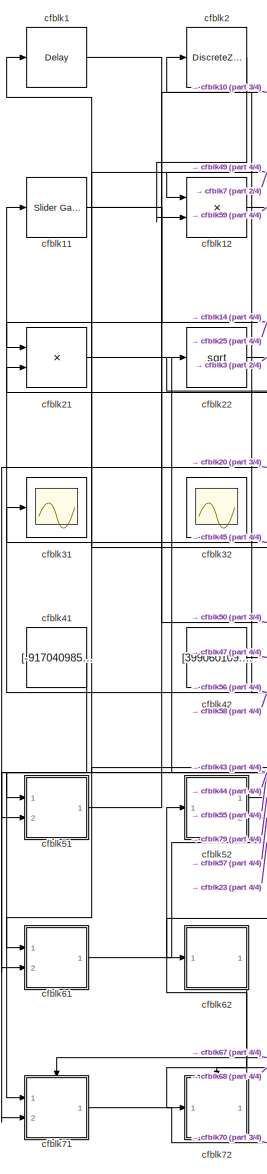
[diagram: root canvas - part 1/4, left side, full height]
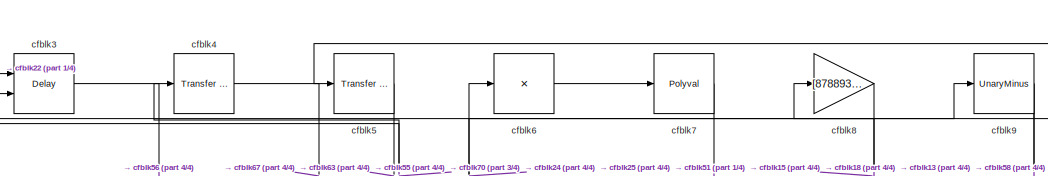
[diagram: root canvas - part 2/4, top center region]
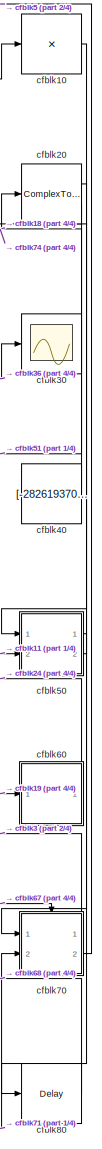
[diagram: root canvas - part 3/4, right side, full height]
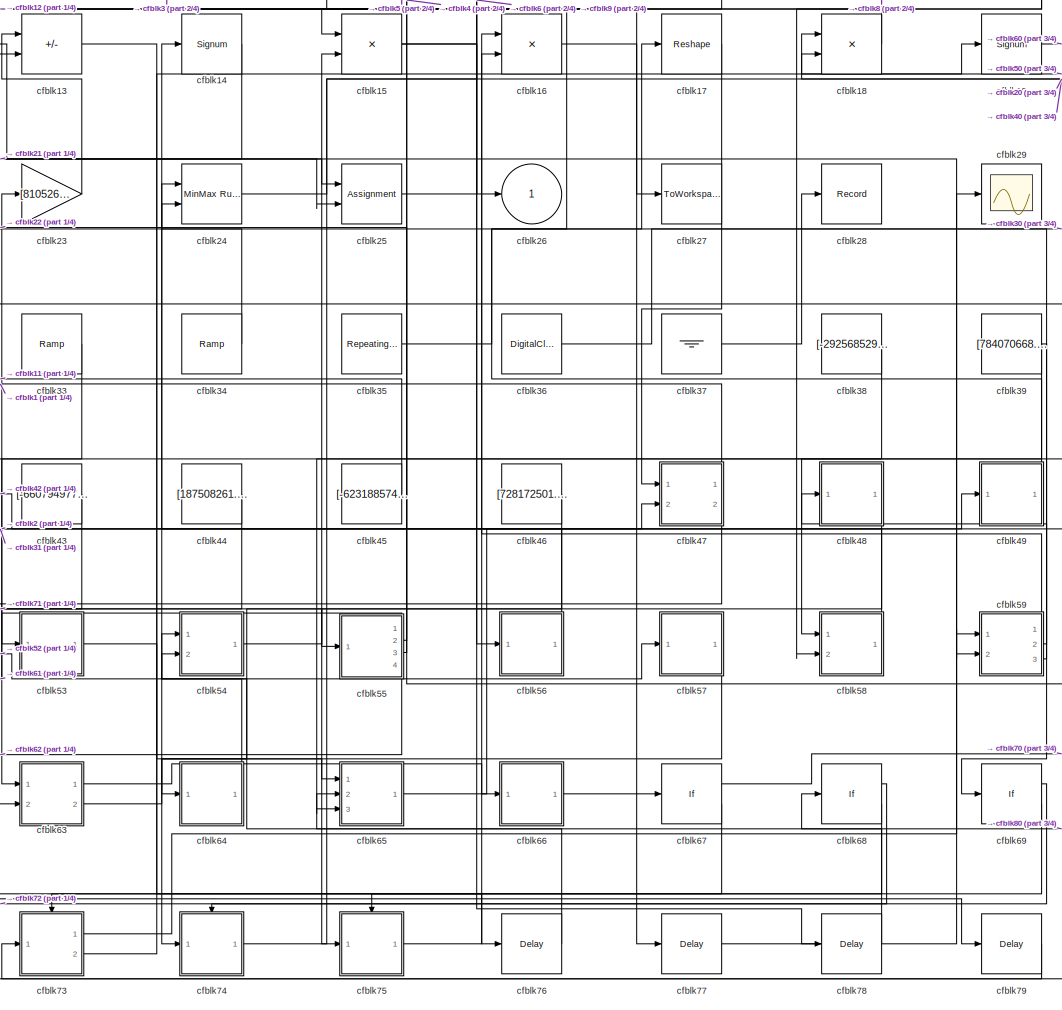
[diagram: root canvas - part 4/4, center side, full height]
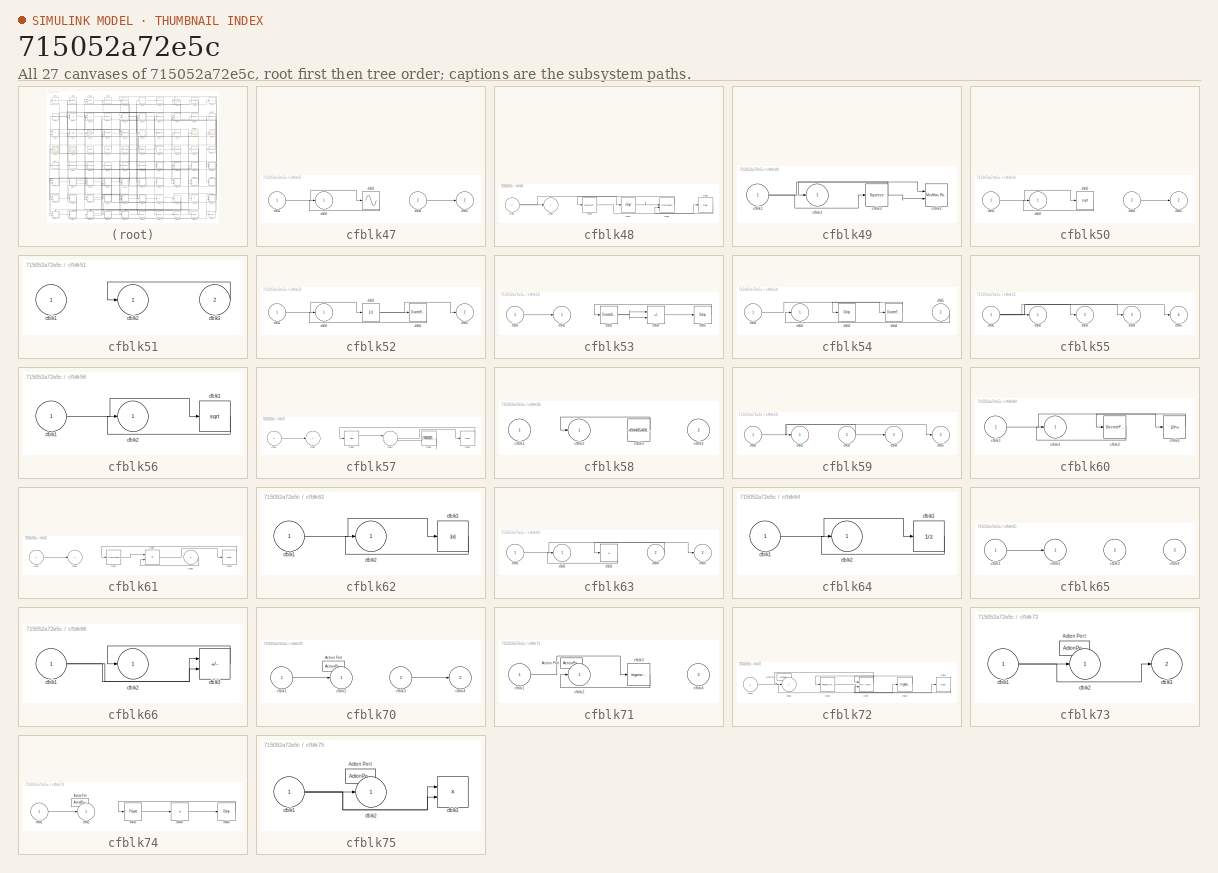
[diagram: thumbnail index - all 27 canvases of the model, root first then tree order]
MODEL slx_715052a72e5c
KIND model
CONFIG AbsTol = auto
CONFIG EnableMultiTasking = off
CONFIG FixedStep = auto
CONFIG MaxStep = auto
CONFIG MinStep = auto
CONFIG RelTol = 1e-3
CONFIG SampleTimeConstraint = Unconstrained
CONFIG SolverName = VariableStepAuto
CONFIG StartTime = 0.0
CONFIG StopTime = 10.0
BLOCK [Delay] cfblk1
  InputPortMap = u0
  Ports = [1, 1]
  SampleTime = 1
BLOCK [Product] cfblk10
  Inputs = *
  Ports = [1, 1]
BLOCK [Reference] cfblk11  REF=simulink/Math
Operations/Slider
Gain
  Ports = [1, 1]
  SourceBlock = simulink/Math\nOperations/Slider\nGain
  SourceProductBaseCode = SL
  SourceType = Slider Gain
BLOCK [Product] cfblk12
  Inputs = **
  Ports = [2, 1]
BLOCK [Sum] cfblk13
  IconShape = rectangular
  Inputs = +-
  Ports = [2, 1]
BLOCK [Signum] cfblk14
BLOCK [Product] cfblk15
  Ports = [2, 1]
BLOCK [Product] cfblk16
  Ports = [2, 1]
BLOCK [Reshape] cfblk17
  Ports = [1, 1]
BLOCK [Product] cfblk18
  Inputs = **
  Ports = [2, 1]
BLOCK [Signum] cfblk19
BLOCK [DiscreteZeroPole] cfblk2
  Gain = 1
  Poles = [0 0.5]
BLOCK [ComplexToRealImag] cfblk20
  Ports = [1, 2]
BLOCK [Product] cfblk21
  Ports = [2, 1]
BLOCK [Sqrt] cfblk22
BLOCK [Gain] cfblk23
  Gain = [810526746.295318]
BLOCK [Reference] cfblk24  REF=simulink/Math
Operations/MinMax
Running
Resettable
  Ports = [2, 1]
  SourceBlock = simulink/Math\nOperations/MinMax\nRunning\nResettable
  SourceProductBaseCode = SL
  SourceType = MinMax Running Resettable
BLOCK [Assignment] cfblk25
  DiagnosticForDimensions = Warning
  IndexOptions = Index vector (dialog)
  Indices = 1
  OutputSizes = 1
  Ports = [2, 1]
BLOCK [Outport] cfblk26
BLOCK [ToWorkspace] cfblk27
  FixptAsFi = on
  MaxDataPoints = inf
  Ports = [1]
  SampleTime = -1
  SaveFormat = Timeseries
  VariableName = hzaqpun
BLOCK [Record] cfblk28
  FileSettingsInternal = {"entries":[{"content":{"excelSettings":{"content":{},"type":"Streamout.ExcelSettings"}},"type":"Streamout.FileSettingStorage","uuid":"24ff093a-1f23-429e-a84e-9bae867bdd3c"}],"packageUris":["http://schema.mathworks.com/mf0/streamout_blocks/R2020a"],"version":"1.0"}
  Ports = [1]
  SignalsInternal = {"entries":[{"content":{"signals":[{"content":{"blockPath":["sampleModel217/cfblk28"],"channel":[],"dimensions":[1],"domain":"sampleModel217/cfblk28","lineColor":"#a2142f","plots":[1],"port":1,"sid":[""],"signalID":8365,"signalName":"cfblk37"},"type":"RecordBlkView.Signal","uuid":"3e2e97f5-1a37-4873-8e35-5f65989afa2d"}]},"type":"RecordBlkView.InputSignals","uuid":"f65d37d0-2da0-4d1a-9cf4-d7ef2a7cb...<+97ch>
  VisualizationBindings = {"sparklinesplugin":{"info":[{"bindingParametersList":[],"subplotID":1}]}}
BLOCK [Scope] cfblk29
  Floating = off
  NumInputPorts = 1
  Ports = [1]
BLOCK [Delay] cfblk3
  DelayLengthSource = Input port
  InputPortMap = u0,p1
  Ports = [2, 1]
  SampleTime = 1
BLOCK [Scope] cfblk30
  Floating = off
  NumInputPorts = 1
  Ports = [1]
BLOCK [Scope] cfblk31
  Floating = off
  NumInputPorts = 1
  Ports = [1]
BLOCK [Scope] cfblk32
  Floating = on
  NumInputPorts = 1
  Ports = []
BLOCK [Reference] cfblk33  REF=simulink/Sources/Ramp
  Ports = [0, 1]
  SourceBlock = simulink/Sources/Ramp
  SourceProductBaseCode = SL
  SourceType = Ramp
BLOCK [Reference] cfblk34  REF=simulink/Sources/Ramp
  Ports = [0, 1]
  SourceBlock = simulink/Sources/Ramp
  SourceProductBaseCode = SL
  SourceType = Ramp
BLOCK [Reference] cfblk35  REF=simulink/Sources/Repeating
Sequence
Interpolated
  Ports = [0, 1]
  SourceBlock = simulink/Sources/Repeating\nSequence\nInterpolated
  SourceProductBaseCode = SL
  SourceType = Repeating Sequence Interpolated
BLOCK [DigitalClock] cfblk36
BLOCK [Ground] cfblk37
BLOCK [Constant] cfblk38
  SampleTime = 1
  Value = [-292568529.496527]
BLOCK [Constant] cfblk39
  SampleTime = 1
  Value = [784070668.278988]
BLOCK [Reference] cfblk4  REF=simulink/Discrete/Transfer Fcn
Real Zero
  Ports = [1, 1]
  SourceBlock = simulink/Discrete/Transfer Fcn\nReal Zero
  SourceProductBaseCode = SL
  SourceType = Transfer Fcn Real Zero
BLOCK [Constant] cfblk40
  SampleTime = 1
  Value = [-282619370.169214]
BLOCK [Constant] cfblk41
  SampleTime = 1
  Value = [-917040985.190765]
BLOCK [Constant] cfblk42
  SampleTime = 1
  Value = [399060109.205925]
BLOCK [Constant] cfblk43
  SampleTime = 1
  Value = [-660794977.327763]
BLOCK [Constant] cfblk44
  SampleTime = 1
  Value = [187508261.668661]
BLOCK [Constant] cfblk45
  SampleTime = 1
  Value = [-623188574.583707]
BLOCK [Constant] cfblk46
  SampleTime = 1
  Value = [728172501.343453]
BLOCK [SubSystem] cfblk47
  Ports = [2, 2]
  RequestExecContextInheritance = off
BLOCK [Inport] cfblk47/cfblk1
BLOCK [Outport] cfblk47/cfblk2
BLOCK [Sin] cfblk47/cfblk3
  Ports = [1, 1]
  SampleTime = 0
  TimeSource = Use external signal
BLOCK [Inport] cfblk47/cfblk4
  Port = 2
BLOCK [Outport] cfblk47/cfblk5
  Port = 2
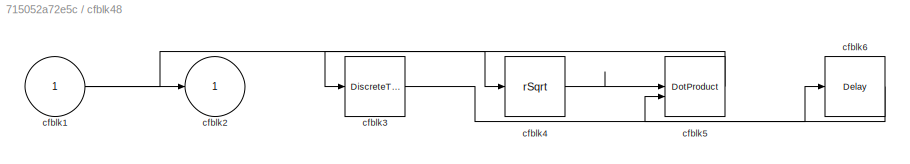
BLOCK [SubSystem] cfblk48
  Ports = [1, 1]
  RequestExecContextInheritance = off
BLOCK [Inport] cfblk48/cfblk1
BLOCK [Outport] cfblk48/cfblk2
BLOCK [DiscreteTransferFcn] cfblk48/cfblk3
  InputPortMap = u0
  Ports = [1, 1]
  SampleTime = 1
BLOCK [Sqrt] cfblk48/cfblk4
  AlgorithmType = Newton-Raphson
  Operator = rSqrt
BLOCK [DotProduct] cfblk48/cfblk5
  OutDataTypeStr = Inherit: Inherit via internal rule
BLOCK [Delay] cfblk48/cfblk6
  InputPortMap = u0
  Ports = [1, 1]
  SampleTime = 1
BLOCK [SubSystem] cfblk49
  Ports = [1, 1]
  RequestExecContextInheritance = off
BLOCK [Inport] cfblk49/cfblk1
BLOCK [Outport] cfblk49/cfblk2
BLOCK [Squeeze] cfblk49/cfblk3
BLOCK [Reference] cfblk49/cfblk4  REF=simulink/Math
Operations/MinMax
Running
Resettable
  Ports = [2, 1]
  SourceBlock = simulink/Math\nOperations/MinMax\nRunning\nResettable
  SourceProductBaseCode = SL
  SourceType = MinMax Running Resettable
BLOCK [Reference] cfblk5  REF=simulink/Discrete/Transfer Fcn
Real Zero
  Ports = [1, 1]
  SourceBlock = simulink/Discrete/Transfer Fcn\nReal Zero
  SourceProductBaseCode = SL
  SourceType = Transfer Fcn Real Zero
BLOCK [SubSystem] cfblk50
  Ports = [2, 2]
  RequestExecContextInheritance = off
BLOCK [Inport] cfblk50/cfblk1
BLOCK [Outport] cfblk50/cfblk2
BLOCK [Sqrt] cfblk50/cfblk3
BLOCK [Inport] cfblk50/cfblk4
  Port = 2
BLOCK [Outport] cfblk50/cfblk5
  Port = 2
BLOCK [SubSystem] cfblk51
  Ports = [2, 1]
  RequestExecContextInheritance = off
BLOCK [Inport] cfblk51/cfblk1
BLOCK [Outport] cfblk51/cfblk2
BLOCK [Inport] cfblk51/cfblk3
  Port = 2
BLOCK [SubSystem] cfblk52
  Ports = [1, 2]
  RequestExecContextInheritance = off
BLOCK [Inport] cfblk52/cfblk1
BLOCK [Outport] cfblk52/cfblk2
BLOCK [UnitDelay] cfblk52/cfblk3
  HasFrameUpgradeWarning = on
BLOCK [DiscreteStateSpace] cfblk52/cfblk4
BLOCK [Outport] cfblk52/cfblk5
  Port = 2
BLOCK [SubSystem] cfblk53
  Ports = [1, 1]
  RequestExecContextInheritance = off
BLOCK [Inport] cfblk53/cfblk1
BLOCK [Outport] cfblk53/cfblk2
BLOCK [DiscreteStateSpace] cfblk53/cfblk3
BLOCK [Sum] cfblk53/cfblk4
  IconShape = rectangular
  Inputs = +-
  Ports = [2, 1]
BLOCK [Delay] cfblk53/cfblk5
  InputPortMap = u0
  Ports = [1, 1]
  SampleTime = 1
BLOCK [SubSystem] cfblk54
  Ports = [2, 1]
  RequestExecContextInheritance = off
BLOCK [Inport] cfblk54/cfblk1
BLOCK [Outport] cfblk54/cfblk2
BLOCK [Delay] cfblk54/cfblk3
  InputPortMap = u0
  Ports = [1, 1]
  SampleTime = 1
BLOCK [DiscreteTransferFcn] cfblk54/cfblk4
  InputPortMap = u0
  Ports = [1, 1]
  SampleTime = 1
BLOCK [Inport] cfblk54/cfblk5
  Port = 2
BLOCK [SubSystem] cfblk55
  Ports = [1, 4]
  RequestExecContextInheritance = off
BLOCK [Inport] cfblk55/cfblk1
BLOCK [Outport] cfblk55/cfblk2
BLOCK [Outport] cfblk55/cfblk3
  Port = 2
BLOCK [Outport] cfblk55/cfblk4
  Port = 3
BLOCK [Outport] cfblk55/cfblk5
  Port = 4
BLOCK [SubSystem] cfblk56
  Ports = [1, 1]
  RequestExecContextInheritance = off
BLOCK [Inport] cfblk56/cfblk1
BLOCK [Outport] cfblk56/cfblk2
BLOCK [Sqrt] cfblk56/cfblk3
BLOCK [SubSystem] cfblk57
  Ports = [1, 1]
  RequestExecContextInheritance = off
BLOCK [Inport] cfblk57/cfblk1
BLOCK [Outport] cfblk57/cfblk2
BLOCK [Bias] cfblk57/cfblk3
  Bias = [-334974696.269725]
  SaturateOnIntegerOverflow = off
BLOCK [Sum] cfblk57/cfblk4
  Inputs = |++
  Ports = [2, 1]
BLOCK [Constant] cfblk57/cfblk5
  SampleTime = 1
  Value = [768603925.087542]
BLOCK [Delay] cfblk57/cfblk6
  InputPortMap = u0
  Ports = [1, 1]
  SampleTime = 1
BLOCK [SubSystem] cfblk58
  Ports = [2, 1]
  RequestExecContextInheritance = off
BLOCK [Inport] cfblk58/cfblk1
BLOCK [Outport] cfblk58/cfblk2
BLOCK [Constant] cfblk58/cfblk3
  SampleTime = 1
  Value = [-494485408.007506]
BLOCK [Inport] cfblk58/cfblk4
  Port = 2
BLOCK [SubSystem] cfblk59
  Ports = [2, 3]
  RequestExecContextInheritance = off
BLOCK [Inport] cfblk59/cfblk1
BLOCK [Outport] cfblk59/cfblk2
BLOCK [Inport] cfblk59/cfblk3
  Port = 2
BLOCK [Outport] cfblk59/cfblk4
  Port = 2
BLOCK [Outport] cfblk59/cfblk5
  Port = 3
BLOCK [Product] cfblk6
  Inputs = *
  Ports = [1, 1]
BLOCK [SubSystem] cfblk60
  Ports = [1, 1]
  RequestExecContextInheritance = off
BLOCK [Inport] cfblk60/cfblk1
BLOCK [Outport] cfblk60/cfblk2
BLOCK [DiscreteFilter] cfblk60/cfblk3
  InputPortMap = u0
  Ports = [1, 1]
  SampleTime = 1
BLOCK [Math] cfblk60/cfblk4
  Operator = 10^u
  Ports = [1, 1]
BLOCK [SubSystem] cfblk61
  Ports = [2, 1]
  RequestExecContextInheritance = off
BLOCK [Inport] cfblk61/cfblk1
BLOCK [Outport] cfblk61/cfblk2
BLOCK [UnaryMinus] cfblk61/cfblk3
BLOCK [Product] cfblk61/cfblk4
  Inputs = **
  Ports = [2, 1]
BLOCK [Inport] cfblk61/cfblk5
  Port = 2
BLOCK [Delay] cfblk61/cfblk6
  InputPortMap = u0
  Ports = [1, 1]
  SampleTime = 1
BLOCK [SubSystem] cfblk62
  Ports = [1, 1]
  RequestExecContextInheritance = off
BLOCK [Inport] cfblk62/cfblk1
BLOCK [Outport] cfblk62/cfblk2
BLOCK [Abs] cfblk62/cfblk3
  SaturateOnIntegerOverflow = off
BLOCK [SubSystem] cfblk63
  Ports = [2, 2]
  RequestExecContextInheritance = off
BLOCK [Inport] cfblk63/cfblk1
BLOCK [Outport] cfblk63/cfblk2
BLOCK [Sum] cfblk63/cfblk3
  IconShape = rectangular
  Inputs = +
  Ports = [1, 1]
BLOCK [Inport] cfblk63/cfblk4
  Port = 2
BLOCK [Outport] cfblk63/cfblk5
  Port = 2
BLOCK [SubSystem] cfblk64
  Ports = [1, 1]
  RequestExecContextInheritance = off
BLOCK [Inport] cfblk64/cfblk1
BLOCK [Outport] cfblk64/cfblk2
BLOCK [UnitDelay] cfblk64/cfblk3
  HasFrameUpgradeWarning = on
BLOCK [SubSystem] cfblk65
  Ports = [3, 1]
  RequestExecContextInheritance = off
BLOCK [Inport] cfblk65/cfblk1
BLOCK [Outport] cfblk65/cfblk2
BLOCK [Inport] cfblk65/cfblk3
  Port = 2
BLOCK [Inport] cfblk65/cfblk4
  Port = 3
BLOCK [SubSystem] cfblk66
  Ports = [1, 1]
  RequestExecContextInheritance = off
BLOCK [Inport] cfblk66/cfblk1
BLOCK [Outport] cfblk66/cfblk2
BLOCK [Sum] cfblk66/cfblk3
  IconShape = rectangular
  Inputs = +-
  Ports = [2, 1]
BLOCK [If] cfblk67
  IfExpression = u1 >= 0
  Ports = [1, 2]
  SampleTime = 1
BLOCK [If] cfblk68
  IfExpression = u1 >= 0
  Ports = [1, 2]
  SampleTime = 1
BLOCK [If] cfblk69
  IfExpression = u1 >= 0
  Ports = [1, 2]
  SampleTime = 1
BLOCK [Polyval] cfblk7
  Coefs = [ +2.081618890e-019, -1.441693666e-014, +4.719686976e-010, -8.536869453e-006, +1.621573104e-001, -8.087801117e+001 ]
BLOCK [SubSystem] cfblk70
  Ports = [2, 2, 0, 0, 0, 0, 0, 1]
  RequestExecContextInheritance = off
  TreatAsAtomicUnit = on
BLOCK [ActionPort] cfblk70/Action Port
  ActionPortLabel = if(u1 >= 0)
BLOCK [Inport] cfblk70/cfblk1
BLOCK [Outport] cfblk70/cfblk2
BLOCK [Inport] cfblk70/cfblk3
  Port = 2
BLOCK [Outport] cfblk70/cfblk4
  Port = 2
BLOCK [SubSystem] cfblk71
  Ports = [2, 1, 0, 0, 0, 0, 0, 1]
  RequestExecContextInheritance = off
  TreatAsAtomicUnit = on
BLOCK [ActionPort] cfblk71/Action Port
  ActionPortLabel = else
BLOCK [Inport] cfblk71/cfblk1
BLOCK [Outport] cfblk71/cfblk2
BLOCK [Trigonometry] cfblk71/cfblk3
  Ports = [1, 1]
BLOCK [Inport] cfblk71/cfblk4
  Port = 2
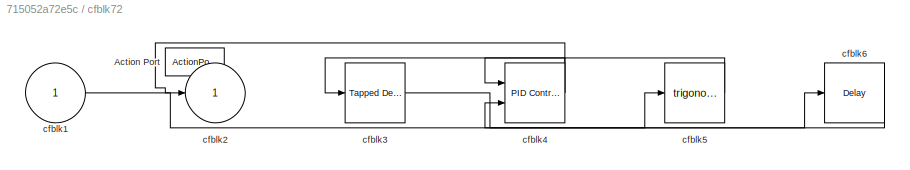
BLOCK [SubSystem] cfblk72
  Ports = [1, 1, 0, 0, 0, 0, 0, 1]
  RequestExecContextInheritance = off
  TreatAsAtomicUnit = on
BLOCK [ActionPort] cfblk72/Action Port
  ActionPortLabel = if(u1 >= 0)
BLOCK [Inport] cfblk72/cfblk1
BLOCK [Outport] cfblk72/cfblk2
BLOCK [Reference] cfblk72/cfblk3  REF=simulink/Discrete/Tapped Delay
  Ports = [1, 1]
  SourceBlock = simulink/Discrete/Tapped Delay
  SourceProductBaseCode = SL
  SourceType = Tapped Delay Line
BLOCK [Reference] cfblk72/cfblk4  REF=slpidlib/PID Controller (2DOF)
  Ports = [2, 1]
  SourceBlock = slpidlib/PID Controller (2DOF)
  SourceProductBaseCode = SL
  SourceType = PID 2dof
BLOCK [Trigonometry] cfblk72/cfblk5
  Ports = [1, 1]
BLOCK [Delay] cfblk72/cfblk6
  InputPortMap = u0
  Ports = [1, 1]
BLOCK [SubSystem] cfblk73
  Ports = [1, 2, 0, 0, 0, 0, 0, 1]
  RequestExecContextInheritance = off
  TreatAsAtomicUnit = on
BLOCK [ActionPort] cfblk73/Action Port
  ActionPortLabel = else
BLOCK [Inport] cfblk73/cfblk1
BLOCK [Outport] cfblk73/cfblk2
BLOCK [Outport] cfblk73/cfblk3
  Port = 2
BLOCK [SubSystem] cfblk74
  Ports = [1, 1, 0, 0, 0, 0, 0, 1]
  RequestExecContextInheritance = off
  TreatAsAtomicUnit = on
BLOCK [ActionPort] cfblk74/Action Port
  ActionPortLabel = if(u1 >= 0)
BLOCK [Inport] cfblk74/cfblk1
BLOCK [Outport] cfblk74/cfblk2
BLOCK [Polyval] cfblk74/cfblk3
  Coefs = [ +2.081618890e-019, -1.441693666e-014, +4.719686976e-010, -8.536869453e-006, +1.621573104e-001, -8.087801117e+001 ]
BLOCK [Product] cfblk74/cfblk4
  Inputs = *
  Ports = [1, 1]
BLOCK [Delay] cfblk74/cfblk5
  InputPortMap = u0
  Ports = [1, 1]
BLOCK [SubSystem] cfblk75
  Ports = [1, 1, 0, 0, 0, 0, 0, 1]
  RequestExecContextInheritance = off
  TreatAsAtomicUnit = on
BLOCK [ActionPort] cfblk75/Action Port
  ActionPortLabel = else
BLOCK [Inport] cfblk75/cfblk1
BLOCK [Outport] cfblk75/cfblk2
BLOCK [Product] cfblk75/cfblk3
  Ports = [2, 1]
BLOCK [Delay] cfblk76
  InputPortMap = u0
  Ports = [1, 1]
  SampleTime = 1
BLOCK [Delay] cfblk77
  InputPortMap = u0
  Ports = [1, 1]
  SampleTime = 1
BLOCK [Delay] cfblk78
  InputPortMap = u0
  Ports = [1, 1]
  SampleTime = 1
BLOCK [Delay] cfblk79
  InputPortMap = u0
  Ports = [1, 1]
  SampleTime = 1
BLOCK [Gain] cfblk8
  Gain = [878893990.907284]
BLOCK [Delay] cfblk80
  InputPortMap = u0
  Ports = [1, 1]
  SampleTime = 1
BLOCK [UnaryMinus] cfblk9
LINE cfblk10:1 -> cfblk50:1
NET cfblk11:1 -> cfblk25:2, cfblk50:2
LINE cfblk12:1 -> cfblk59:2
LINE cfblk13:1 -> cfblk65:1
LINE cfblk14:1 -> cfblk21:1
NET cfblk15:1 -> cfblk26:1, cfblk78:1
LINE cfblk16:1 -> cfblk27:1
LINE cfblk17:1 -> cfblk47:1
LINE cfblk18:1 -> cfblk8:1
LINE cfblk19:1 -> cfblk60:1
LINE cfblk1:1 -> cfblk25:1
LINE cfblk20:1 -> cfblk80:1
LINE cfblk20:2 -> cfblk51:2
LINE cfblk21:1 -> cfblk55:1
LINE cfblk22:1 -> cfblk3:1
LINE cfblk23:1 -> cfblk13:1
LINE cfblk24:1 -> cfblk6:1
LINE cfblk25:1 -> cfblk9:1
LINE cfblk2:1 -> cfblk12:2
LINE cfblk33:1 -> cfblk63:1
LINE cfblk34:1 -> cfblk14:1
LINE cfblk35:1 -> cfblk17:1
LINE cfblk36:1 -> cfblk30:1
LINE cfblk37:1 -> cfblk28:1
LINE cfblk38:1 -> cfblk58:1
NET cfblk39:1 -> cfblk65:3, cfblk69:1
LINE cfblk3:1 -> cfblk56:1
LINE cfblk40:1 -> cfblk18:1
LINE cfblk41:1 -> cfblk71:2
LINE cfblk42:1 -> cfblk47:2
LINE cfblk43:1 -> cfblk71:1
LINE cfblk44:1 -> cfblk61:2
LINE cfblk45:1 -> cfblk11:1
LINE cfblk46:1 -> cfblk75:1
LINE cfblk47/cfblk1:1 -> cfblk47/cfblk3:1
LINE cfblk47/cfblk3:1 -> cfblk47/cfblk2:1
LINE cfblk47/cfblk4:1 -> cfblk47/cfblk5:1
LINE cfblk47:1 -> cfblk1:1
LINE cfblk47:2 -> cfblk61:1
NET cfblk48/cfblk1:1 -> cfblk48/cfblk2:1, cfblk48/cfblk4:1
LINE cfblk48/cfblk3:1 -> cfblk48/cfblk6:1
LINE cfblk48/cfblk4:1 -> cfblk48/cfblk5:1
LINE cfblk48/cfblk5:1 -> cfblk48/cfblk3:1
LINE cfblk48/cfblk6:1 -> cfblk48/cfblk5:2
LINE cfblk48:1 -> cfblk64:1
NET cfblk49/cfblk1:1 -> cfblk49/cfblk3:1, cfblk49/cfblk4:1
NET cfblk49/cfblk3:1 -> cfblk49/cfblk2:1, cfblk49/cfblk4:2
LINE cfblk49:1 -> cfblk12:1
LINE cfblk4:1 -> cfblk67:1
LINE cfblk50/cfblk1:1 -> cfblk50/cfblk3:1
LINE cfblk50/cfblk3:1 -> cfblk50/cfblk2:1
LINE cfblk50/cfblk4:1 -> cfblk50/cfblk5:1
LINE cfblk50:1 -> cfblk70:1
LINE cfblk50:2 -> cfblk18:2
LINE cfblk51/cfblk3:1 -> cfblk51/cfblk2:1
LINE cfblk51:1 -> cfblk10:1
LINE cfblk52/cfblk1:1 -> cfblk52/cfblk3:1
NET cfblk52/cfblk3:1 -> cfblk52/cfblk4:1, cfblk52/cfblk5:1
LINE cfblk52/cfblk4:1 -> cfblk52/cfblk2:1
LINE cfblk52:1 -> cfblk79:1
LINE cfblk52:2 -> cfblk57:1
LINE cfblk53/cfblk1:1 -> cfblk53/cfblk2:1
NET cfblk53/cfblk3:1 -> cfblk53/cfblk4:1, cfblk53/cfblk4:2
LINE cfblk53/cfblk4:1 -> cfblk53/cfblk5:1
LINE cfblk53/cfblk5:1 -> cfblk53/cfblk3:1
LINE cfblk53:1 -> cfblk76:1
LINE cfblk54/cfblk1:1 -> cfblk54/cfblk4:1
LINE cfblk54/cfblk4:1 -> cfblk54/cfblk3:1
LINE cfblk54/cfblk5:1 -> cfblk54/cfblk2:1
LINE cfblk54:1 -> cfblk15:2
NET cfblk55/cfblk1:1 -> cfblk55/cfblk2:1, cfblk55/cfblk3:1, cfblk55/cfblk4:1, cfblk55/cfblk5:1
LINE cfblk55:1 -> cfblk53:1
LINE cfblk55:2 -> cfblk4:1
LINE cfblk55:3 -> cfblk22:1
LINE cfblk55:4 -> cfblk62:1
LINE cfblk56/cfblk1:1 -> cfblk56/cfblk3:1
LINE cfblk56/cfblk3:1 -> cfblk56/cfblk2:1
LINE cfblk56:1 -> cfblk31:1
LINE cfblk57/cfblk1:1 -> cfblk57/cfblk2:1
LINE cfblk57/cfblk3:1 -> cfblk57/cfblk4:1
LINE cfblk57/cfblk4:1 -> cfblk57/cfblk6:1
LINE cfblk57/cfblk5:1 -> cfblk57/cfblk4:2
LINE cfblk57/cfblk6:1 -> cfblk57/cfblk3:1
LINE cfblk57:1 -> cfblk74:1
LINE cfblk58/cfblk3:1 -> cfblk58/cfblk2:1
LINE cfblk58:1 -> cfblk2:1
LINE cfblk59/cfblk1:1 -> cfblk59/cfblk5:1
NET cfblk59/cfblk3:1 -> cfblk59/cfblk2:1, cfblk59/cfblk4:1
LINE cfblk59:1 -> cfblk16:1
LINE cfblk59:2 -> cfblk21:2
LINE cfblk59:3 -> cfblk48:1
LINE cfblk5:1 -> cfblk63:2
LINE cfblk60/cfblk1:1 -> cfblk60/cfblk4:1
LINE cfblk60/cfblk3:1 -> cfblk60/cfblk2:1
LINE cfblk60/cfblk4:1 -> cfblk60/cfblk3:1
LINE cfblk60:1 -> cfblk24:2
LINE cfblk61/cfblk1:1 -> cfblk61/cfblk2:1
LINE cfblk61/cfblk3:1 -> cfblk61/cfblk4:1
LINE cfblk61/cfblk4:1 -> cfblk61/cfblk6:1
LINE cfblk61/cfblk5:1 -> cfblk61/cfblk4:2
LINE cfblk61/cfblk6:1 -> cfblk61/cfblk3:1
LINE cfblk61:1 -> cfblk23:1
LINE cfblk62/cfblk1:1 -> cfblk62/cfblk3:1
LINE cfblk62/cfblk3:1 -> cfblk62/cfblk2:1
LINE cfblk62:1 -> cfblk72:1
LINE cfblk63/cfblk1:1 -> cfblk63/cfblk5:1
LINE cfblk63/cfblk3:1 -> cfblk63/cfblk2:1
LINE cfblk63/cfblk4:1 -> cfblk63/cfblk3:1
LINE cfblk63:1 -> cfblk66:1
LINE cfblk63:2 -> cfblk54:1
LINE cfblk64/cfblk1:1 -> cfblk64/cfblk3:1
LINE cfblk64/cfblk3:1 -> cfblk64/cfblk2:1
LINE cfblk64:1 -> cfblk24:1
LINE cfblk65/cfblk1:1 -> cfblk65/cfblk2:1
LINE cfblk65:1 -> cfblk49:1
NET cfblk66/cfblk1:1 -> cfblk66/cfblk3:1, cfblk66/cfblk3:2
LINE cfblk66/cfblk3:1 -> cfblk66/cfblk2:1
LINE cfblk66:1 -> cfblk77:1
LINE cfblk67:1 -> cfblk70:ifaction
LINE cfblk67:2 -> cfblk71:ifaction
LINE cfblk68:1 -> cfblk72:ifaction
LINE cfblk68:2 -> cfblk73:ifaction
LINE cfblk69:1 -> cfblk74:ifaction
LINE cfblk69:2 -> cfblk75:ifaction
LINE cfblk6:1 -> cfblk7:1
LINE cfblk70/cfblk1:1 -> cfblk70/cfblk2:1
LINE cfblk70/cfblk3:1 -> cfblk70/cfblk4:1
LINE cfblk70:1 -> cfblk3:2
LINE cfblk70:2 -> cfblk5:1
LINE cfblk71/cfblk1:1 -> cfblk71/cfblk3:1
LINE cfblk71/cfblk3:1 -> cfblk71/cfblk2:1
LINE cfblk71:1 -> cfblk70:2
LINE cfblk72/cfblk1:1 -> cfblk72/cfblk5:1
LINE cfblk72/cfblk3:1 -> cfblk72/cfblk6:1
NET cfblk72/cfblk4:1 -> cfblk72/cfblk2:1, cfblk72/cfblk3:1
LINE cfblk72/cfblk5:1 -> cfblk72/cfblk4:1
LINE cfblk72/cfblk6:1 -> cfblk72/cfblk4:2
LINE cfblk72:1 -> cfblk52:1
NET cfblk73/cfblk1:1 -> cfblk73/cfblk2:1, cfblk73/cfblk3:1
LINE cfblk73:1 -> cfblk29:1
LINE cfblk73:2 -> cfblk19:1
LINE cfblk74/cfblk1:1 -> cfblk74/cfblk2:1
LINE cfblk74/cfblk3:1 -> cfblk74/cfblk4:1
LINE cfblk74/cfblk4:1 -> cfblk74/cfblk5:1
LINE cfblk74/cfblk5:1 -> cfblk74/cfblk3:1
LINE cfblk74:1 -> cfblk20:1
NET cfblk75/cfblk1:1 -> cfblk75/cfblk2:1, cfblk75/cfblk3:1, cfblk75/cfblk3:2
LINE cfblk75:1 -> cfblk16:2
LINE cfblk76:1 -> cfblk65:2
LINE cfblk77:1 -> cfblk59:1
LINE cfblk78:1 -> cfblk54:2
LINE cfblk79:1 -> cfblk73:1
LINE cfblk7:1 -> cfblk51:1
LINE cfblk80:1 -> cfblk68:1
LINE cfblk8:1 -> cfblk15:1
NET cfblk9:1 -> cfblk13:2, cfblk58:2
note: NET lines group one-source signal fan-out (src -> all destinations, sorted); 1:1 wires keep LINE
